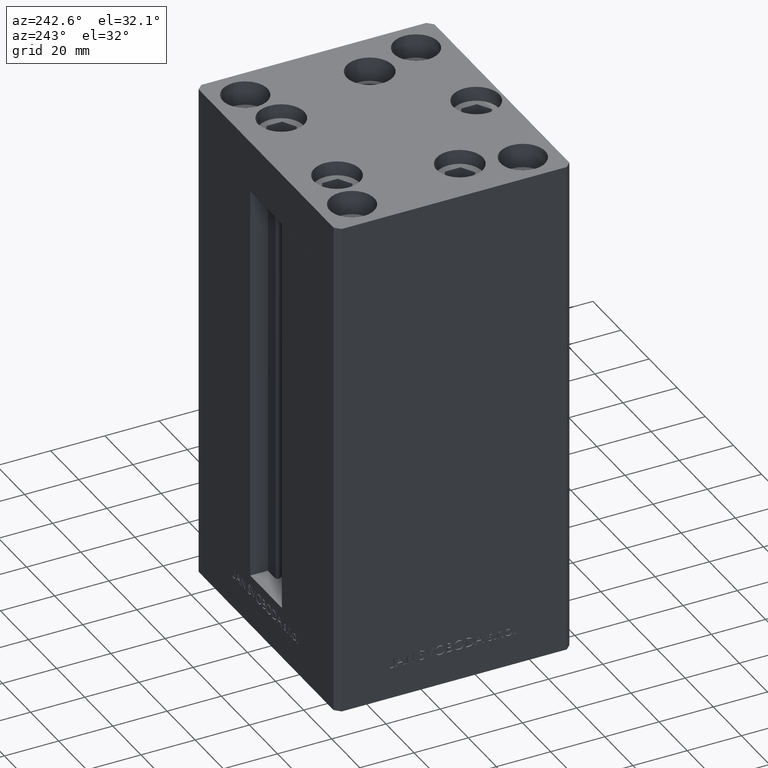
[diagram: clean part render]
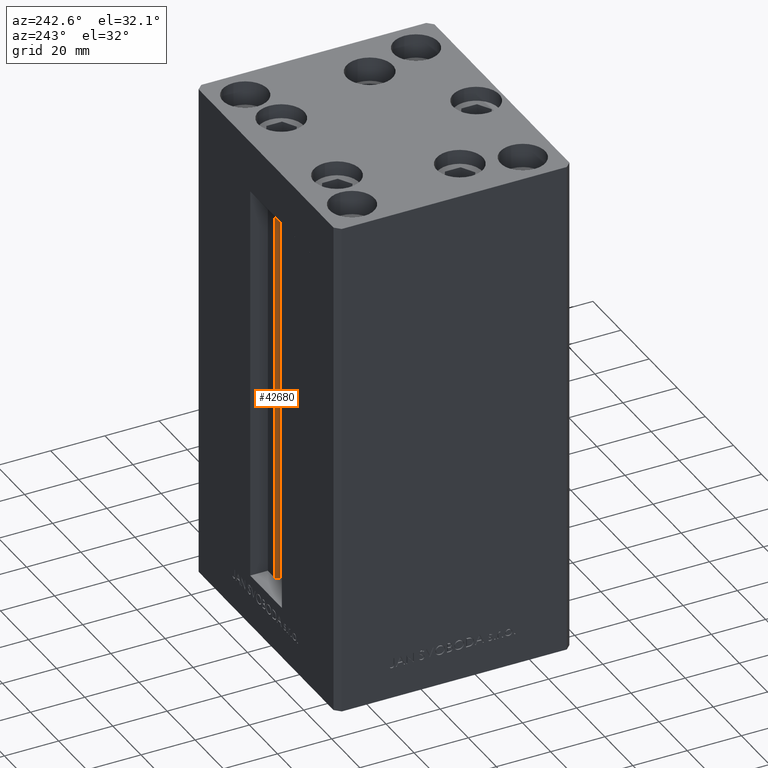
[diagram: same view with one face highlighted and labeled with its STEP entity id]
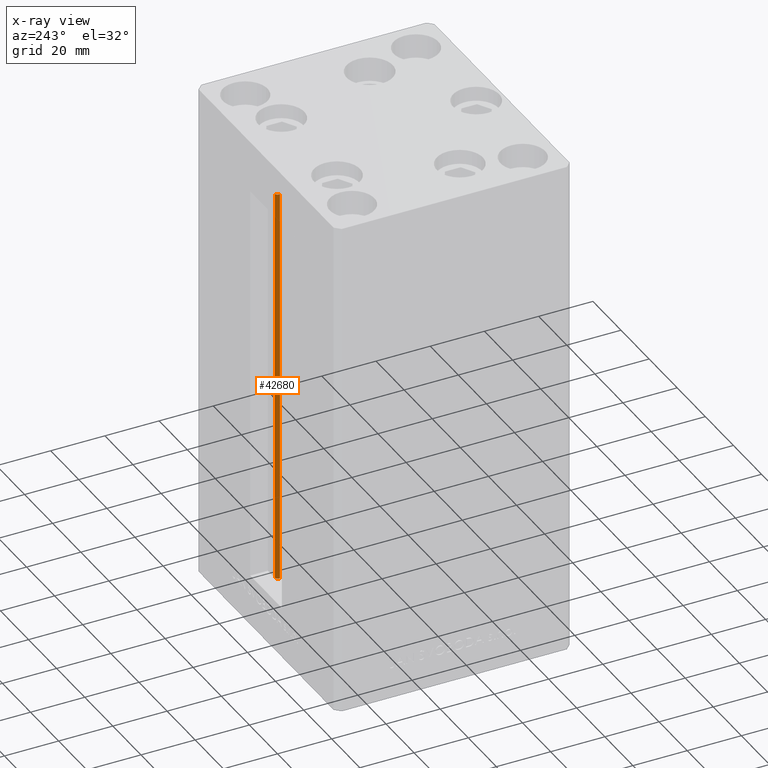
[diagram: x-ray of the same camera — body ghosted, the highlighted face saturated]
A machine part, auxiliary view. The second image highlights one B-rep face of the part: STEP entity #42680.
The next image is the same camera in x-ray: the body ghosted, the highlighted face saturated — about 0% of this face is hidden behind the body in this view.
In plain terms, the highlighted cylindrical surface (edge-blend (fillet) strip) has radius 0.9333 mm, axis along (0, 0, 1).
Its self-contained STEP definition (entity closure, byte-faithful):
#1699 = EDGE_CURVE ( 'NONE', #21149, #10704, #13902, .T. ) ;
#1931 = LINE ( 'NONE', #31514, #41919 ) ;
#3455 = ORIENTED_EDGE ( 'NONE', *, *, #1699, .F. ) ;
#6603 = DIRECTION ( 'NONE',  ( 1.000000000000000000, 0.000000000000000000, 0.000000000000000000 ) ) ;
#7180 = CARTESIAN_POINT ( 'NONE',  ( 6.183333333333997928, 36.99999999999999289, 0.000000000000000000 ) ) ;
#8483 = CARTESIAN_POINT ( 'NONE',  ( 5.375042956467942723, 35.59999999999898534, 148.5000000000000000 ) ) ;
#10704 = VERTEX_POINT ( 'NONE', #34127 ) ;
#11770 = DIRECTION ( 'NONE',  ( 1.000000000000000000, 0.000000000000000000, 0.000000000000000000 ) ) ;
#12613 = DIRECTION ( 'NONE',  ( -0.000000000000000000, -0.000000000000000000, 1.000000000000000000 ) ) ;
#13571 = CYLINDRICAL_SURFACE ( 'NONE', #26820, 0.9333333333340008142 ) ;
#13902 = LINE ( 'NONE', #7180, #36465 ) ;
#17197 = CARTESIAN_POINT ( 'NONE',  ( 6.183333333333997928, 36.06666666666598786, 0.000000000000000000 ) ) ;
#18073 = EDGE_LOOP ( 'NONE', ( #3455, #45939, #40067, #41818 ) ) ;
#19695 = CARTESIAN_POINT ( 'NONE',  ( 5.375042956467945388, 35.59999999999898534, 0.000000000000000000 ) ) ;
#20659 = CIRCLE ( 'NONE', #27003, 0.9333333333340008142 ) ;
#21149 = VERTEX_POINT ( 'NONE', #45346 ) ;
#21375 = DIRECTION ( 'NONE',  ( -0.000000000000000000, -0.000000000000000000, 1.000000000000000000 ) ) ;
#23310 = EDGE_CURVE ( 'NONE', #33271, #21149, #20659, .T. ) ;
#25483 = FACE_OUTER_BOUND ( 'NONE', #18073, .T. ) ;
#26320 = CIRCLE ( 'NONE', #38252, 0.9333333333340008142 ) ;
#26820 = AXIS2_PLACEMENT_3D ( 'NONE', #32966, #40651, #6603 ) ;
#27003 = AXIS2_PLACEMENT_3D ( 'NONE', #17197, #47505, #39550 ) ;
#30341 = EDGE_CURVE ( 'NONE', #32609, #10704, #26320, .T. ) ;
#31514 = CARTESIAN_POINT ( 'NONE',  ( 5.375042956467945388, 35.59999999999898534, 0.000000000000000000 ) ) ;
#32609 = VERTEX_POINT ( 'NONE', #8483 ) ;
#32966 = CARTESIAN_POINT ( 'NONE',  ( 6.183333333333997928, 36.06666666666598786, 0.000000000000000000 ) ) ;
#33271 = VERTEX_POINT ( 'NONE', #19695 ) ;
#34127 = CARTESIAN_POINT ( 'NONE',  ( 6.183333333333997928, 36.99999999999999289, 148.5000000000000000 ) ) ;
#36465 = VECTOR ( 'NONE', #21375, 1000.000000000000000 ) ;
#37381 = DIRECTION ( 'NONE',  ( 0.000000000000000000, 0.000000000000000000, -1.000000000000000000 ) ) ;
#38252 = AXIS2_PLACEMENT_3D ( 'NONE', #41834, #37381, #11770 ) ;
#39550 = DIRECTION ( 'NONE',  ( 1.000000000000000000, 0.000000000000000000, 0.000000000000000000 ) ) ;
#40067 = ORIENTED_EDGE ( 'NONE', *, *, #44635, .T. ) ;
#40651 = DIRECTION ( 'NONE',  ( -0.000000000000000000, -0.000000000000000000, 1.000000000000000000 ) ) ;
#41818 = ORIENTED_EDGE ( 'NONE', *, *, #30341, .T. ) ;
#41834 = CARTESIAN_POINT ( 'NONE',  ( 6.183333333333997928, 36.06666666666598786, 148.5000000000000000 ) ) ;
#41919 = VECTOR ( 'NONE', #12613, 1000.000000000000000 ) ;
#42680 = ADVANCED_FACE ( 'NONE', ( #25483 ), #13571, .T. ) ;
#44635 = EDGE_CURVE ( 'NONE', #33271, #32609, #1931, .T. ) ;
#45346 = CARTESIAN_POINT ( 'NONE',  ( 6.183333333333997928, 36.99999999999999289, 0.000000000000000000 ) ) ;
#45939 = ORIENTED_EDGE ( 'NONE', *, *, #23310, .F. ) ;
#47505 = DIRECTION ( 'NONE',  ( -0.000000000000000000, -0.000000000000000000, -1.000000000000000000 ) ) ;